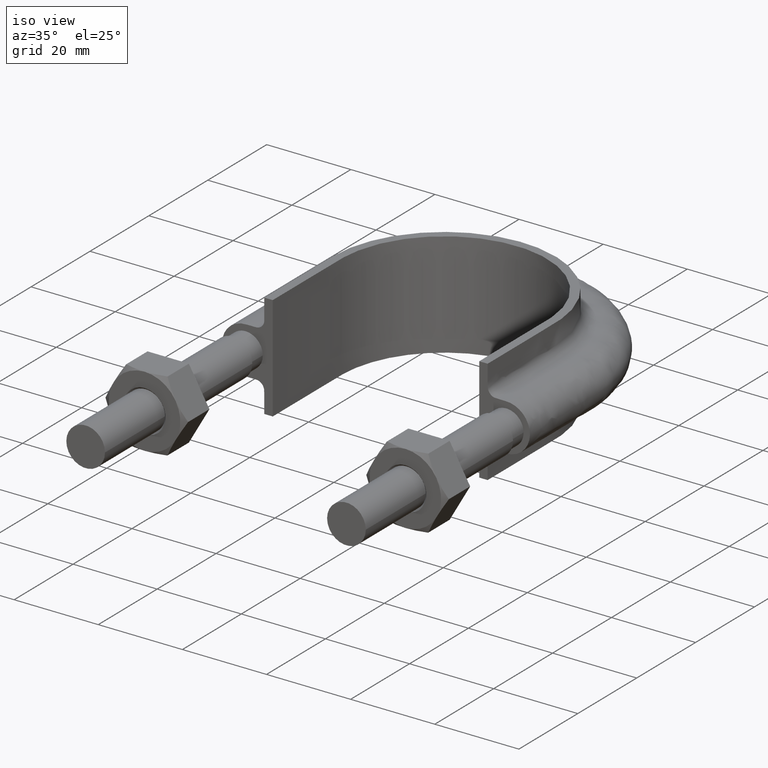
[diagram: clean part render]
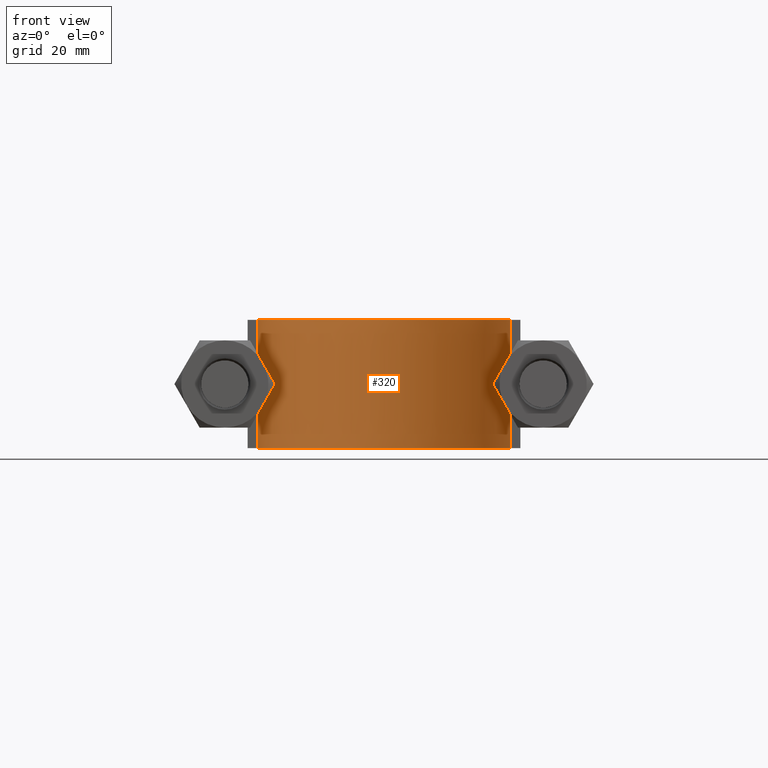
[diagram: tour spotlight — one face highlighted and labeled with its STEP entity id]
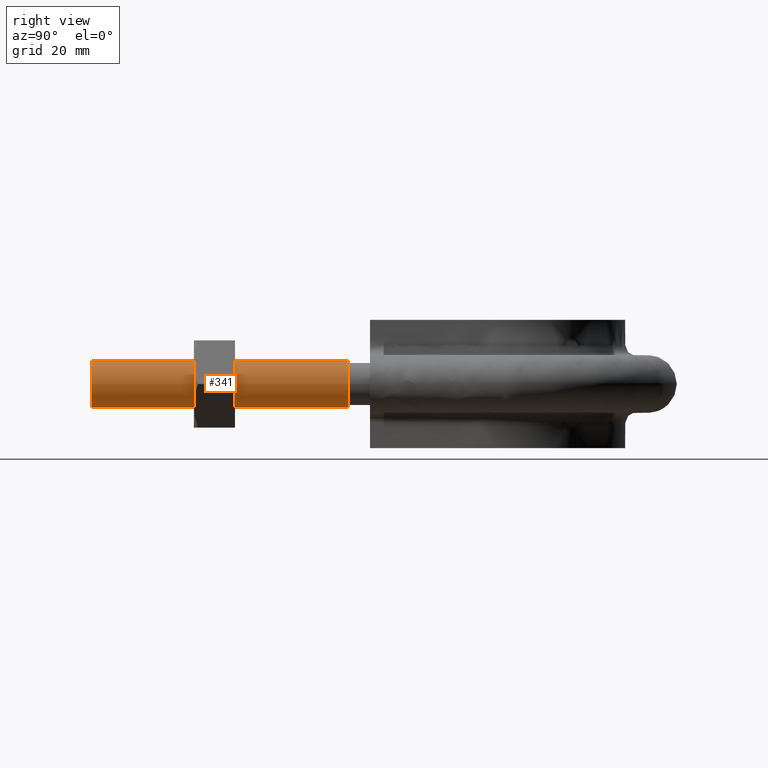
[diagram: tour spotlight — one face highlighted and labeled with its STEP entity id]
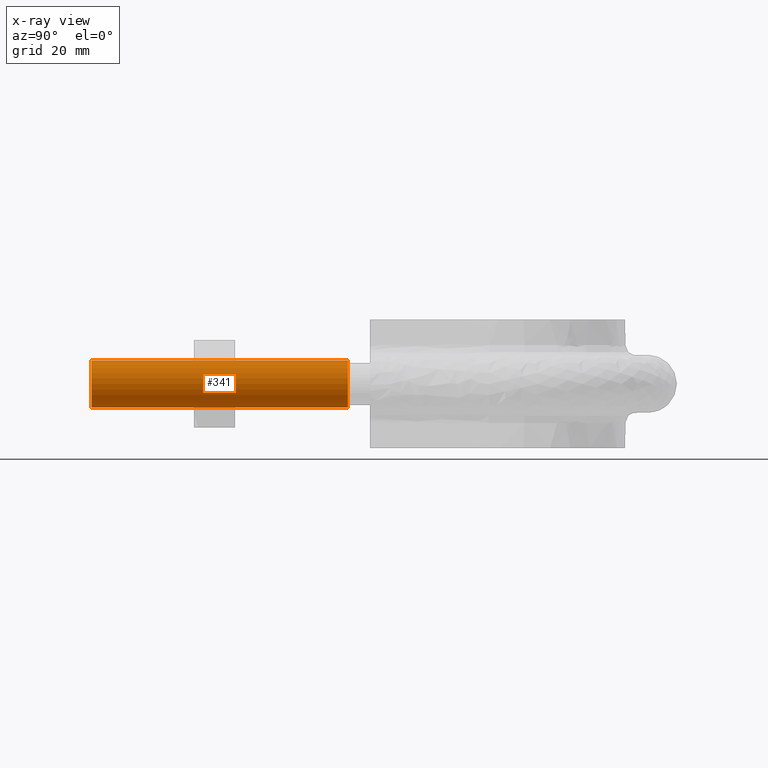
[diagram: x-ray of the same camera — body ghosted, this tour face saturated]
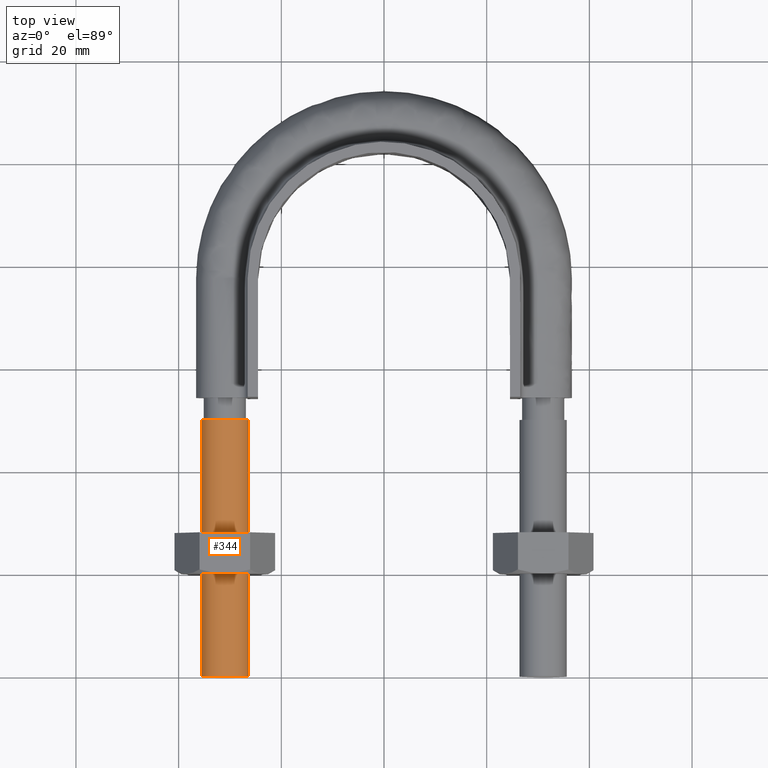
[diagram: tour spotlight — one face highlighted and labeled with its STEP entity id]
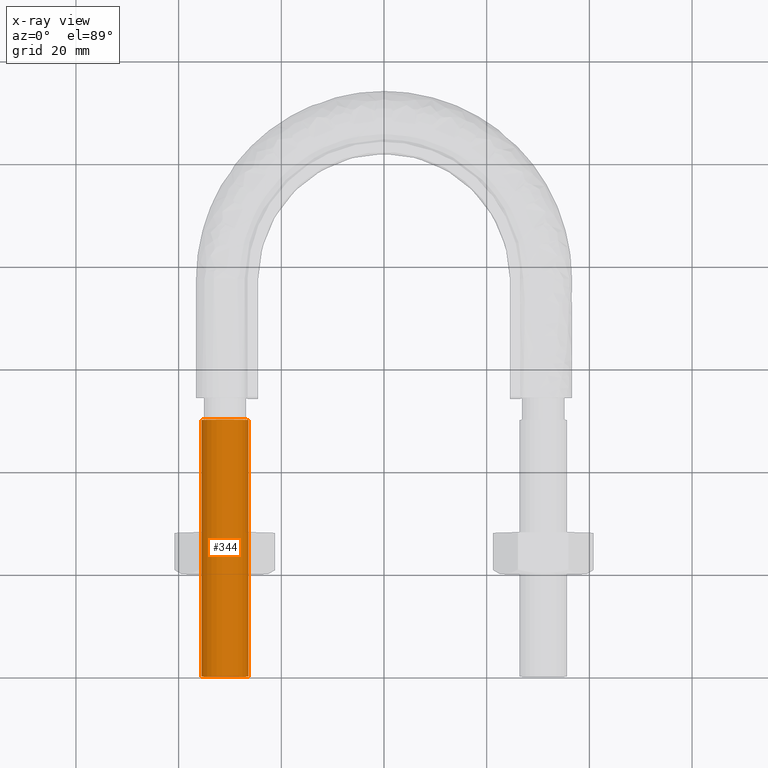
[diagram: x-ray of the same camera — body ghosted, this tour face saturated]
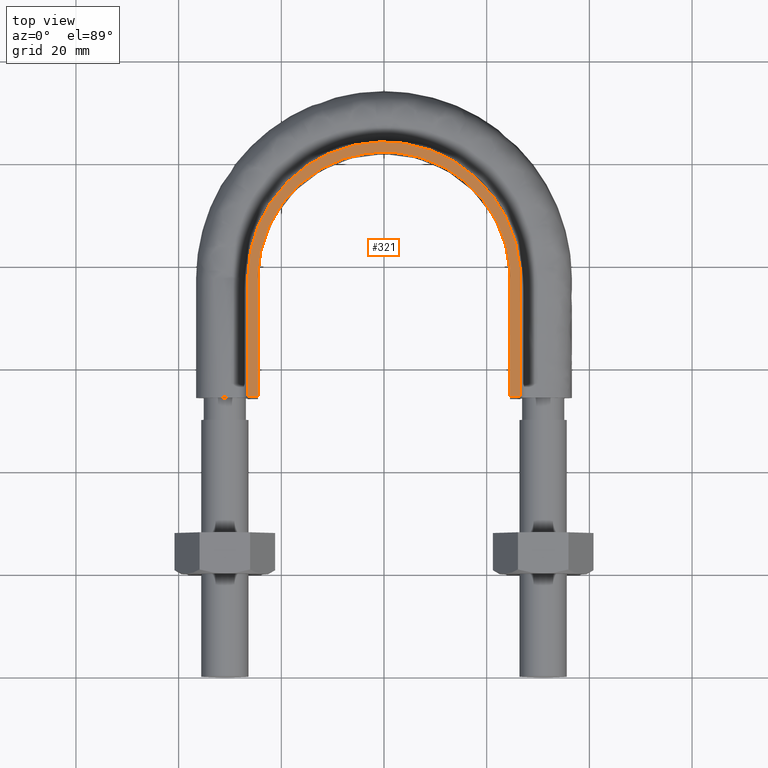
[diagram: tour spotlight — one face highlighted and labeled with its STEP entity id]
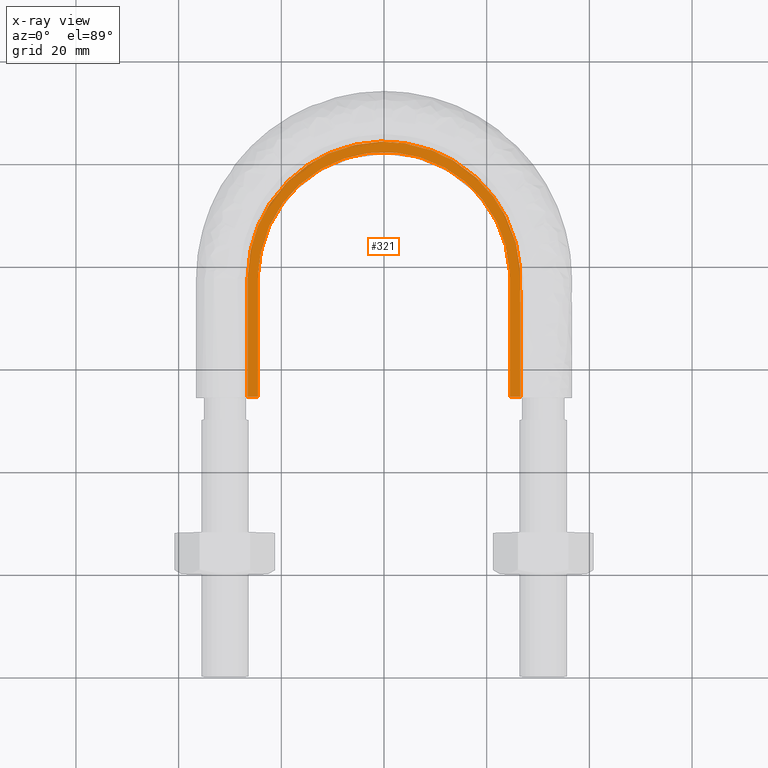
[diagram: x-ray of the same camera — body ghosted, this tour face saturated]
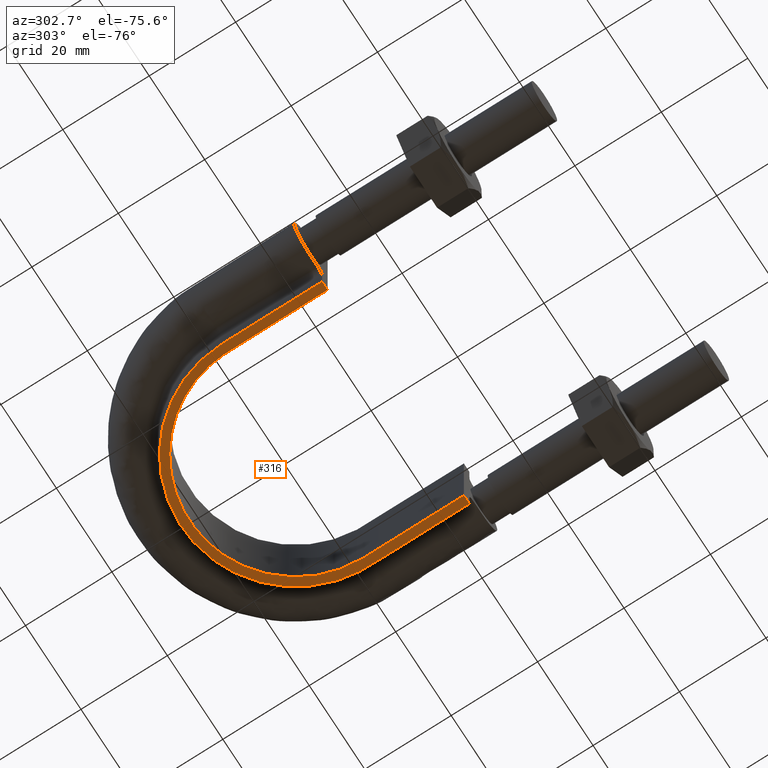
[diagram: tour spotlight — one face highlighted and labeled with its STEP entity id]
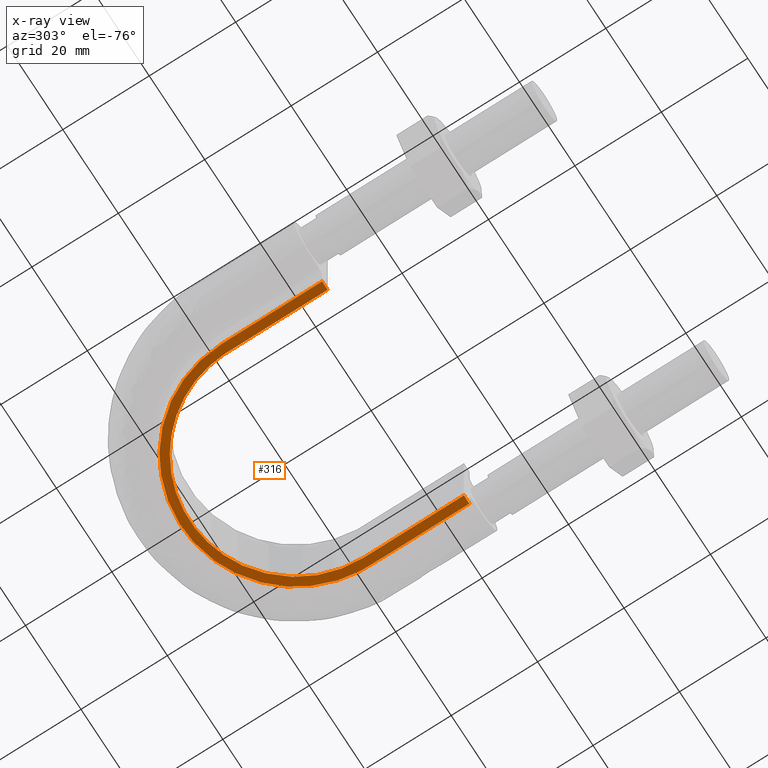
[diagram: x-ray of the same camera — body ghosted, this tour face saturated]
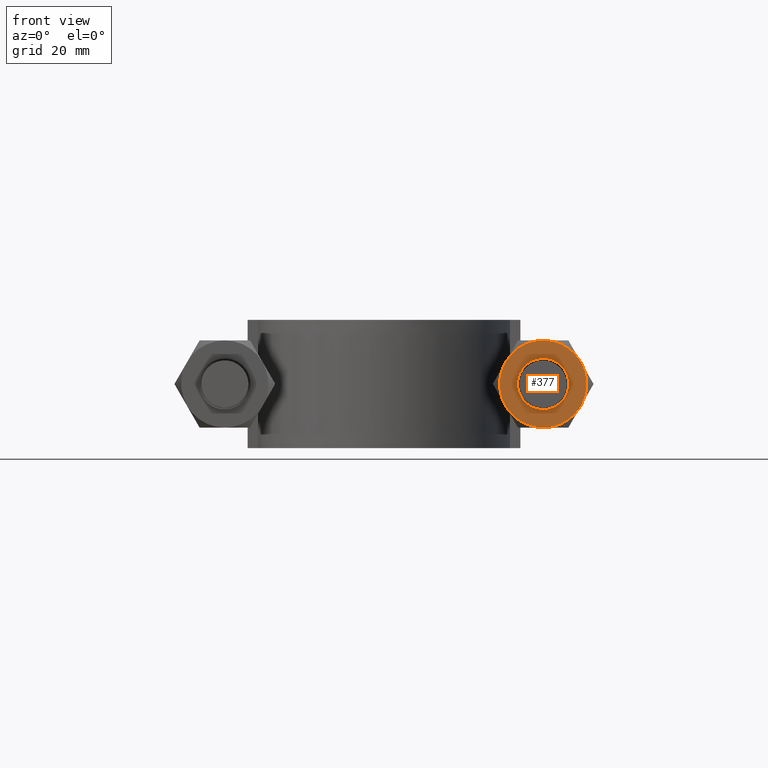
[diagram: tour spotlight — one face highlighted and labeled with its STEP entity id]
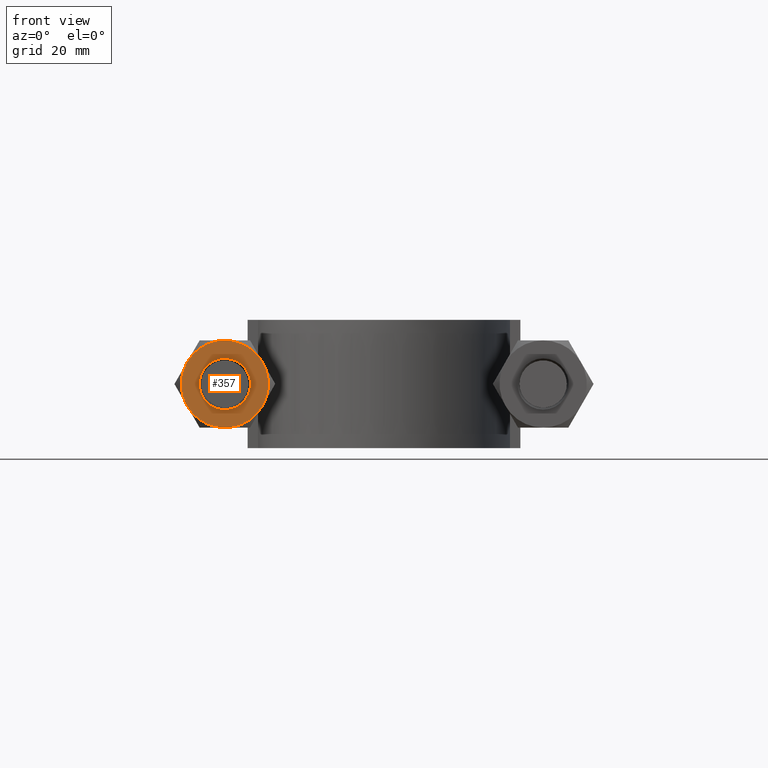
[diagram: tour spotlight — one face highlighted and labeled with its STEP entity id]
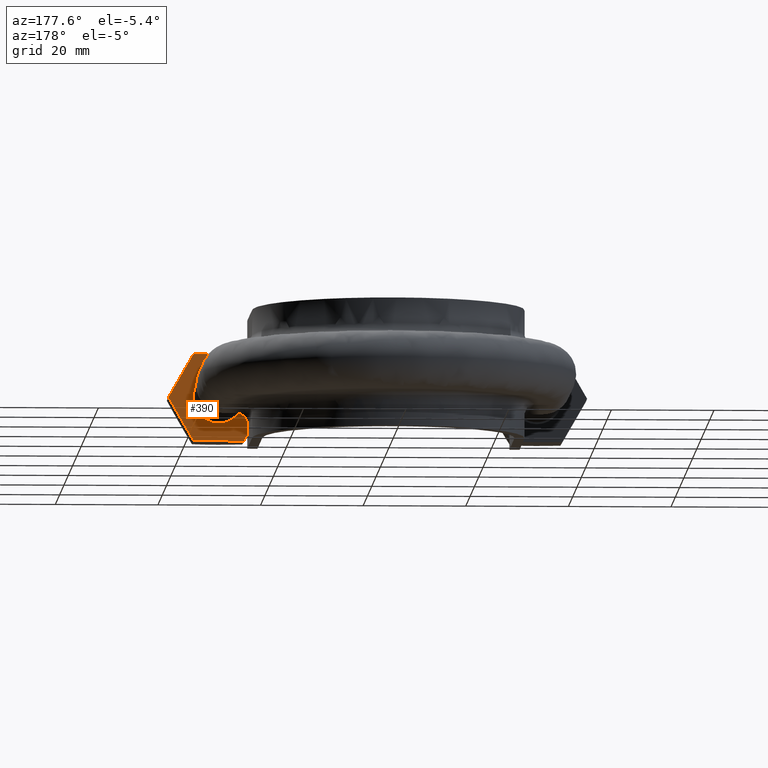
[diagram: tour spotlight — one face highlighted and labeled with its STEP entity id]
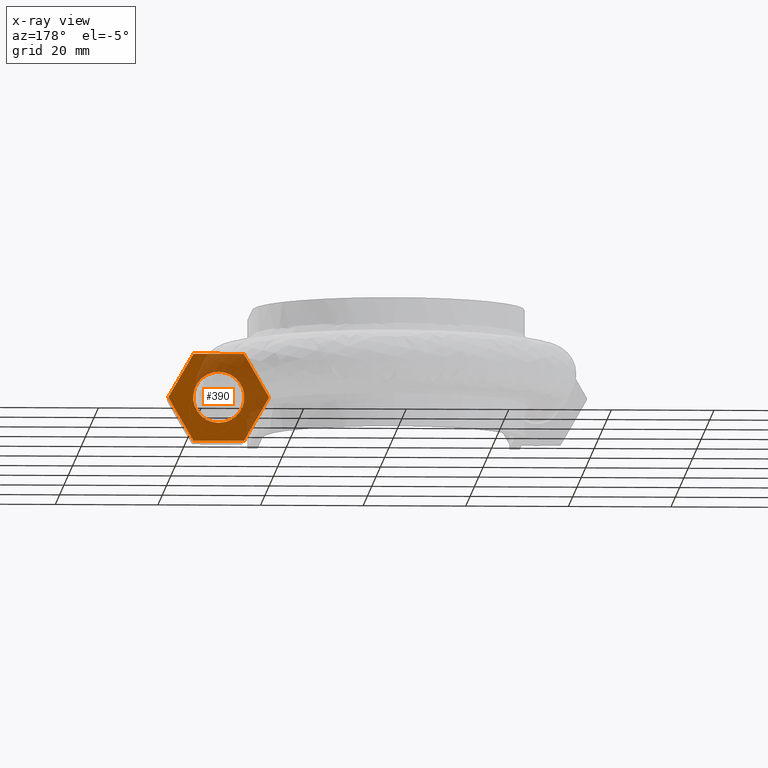
[diagram: x-ray of the same camera — body ghosted, this tour face saturated]
A machine part: a face-by-face anatomy tour. The part has 78 B-rep faces; the first image is the clean iso view, then the 8 largest visible faces are spotlighted one at a time (largest first), each with its STEP entity span.

Face 1 — front view, entity #320. In plain terms, the highlighted face is a SurfaceOfExtrusion surface.
Definition (entity closure, byte-faithful):
#320 = ADVANCED_FACE( '', ( #407 ), #408, .T. );
#407 = FACE_OUTER_BOUND( '', #1256, .T. );
#408 = SURFACE_OF_LINEAR_EXTRUSION( '', #1257, #1258 );
#1256 = EDGE_LOOP( '', ( #1596, #1597, #1598, #1599 ) );
#1257 = B_SPLINE_CURVE_WITH_KNOTS( '', 3, ( #1600, #1601, #1602, #1603, #1604, #1605, #1606, #1607, #1608, #1609, #1610, #1611, #1612, #1613, #1614, #1615, #1616 ), .UNSPECIFIED., .F., .F., ( 4, 3, 1, 1, 1, 1, 1, 1, 1, 3, 4 ), ( -7.85424354243542, -7.00000000000000, -6.50000000000000, -6.00000000000000, -5.00000000000000, -4.00000000000000, -3.00000000000000, -2.00000000000000, -1.50000000000000, -1.00000000000000, -0.145756457564576 ), .UNSPECIFIED. );
#1258 = VECTOR( '', #1617, 1000.00000000000 );
#1596 = ORIENTED_EDGE( '', *, *, #2111, .T. );
#1597 = ORIENTED_EDGE( '', *, *, #2116, .T. );
#1598 = ORIENTED_EDGE( '', *, *, #2122, .F. );
#1599 = ORIENTED_EDGE( '', *, *, #2124, .T. );
#1600 = CARTESIAN_POINT( '', ( 24.5500000000000, 54.3000000000000, 12.5000100000910 ) );
#1601 = CARTESIAN_POINT( '', ( 24.5500000000000, 62.0166666666667, 12.5000100000910 ) );
#1602 = CARTESIAN_POINT( '', ( 24.5500000000000, 69.7333333333333, 12.5000100000910 ) );
#1603 = CARTESIAN_POINT( '', ( 24.5500000000000, 77.4500000000000, 12.5000100000910 ) );
#1604 = CARTESIAN_POINT( '', ( 24.5500000000000, 79.5780025041717, 12.5000100000910 ) );
#1605 = CARTESIAN_POINT( '', ( 23.9738358905282, 83.8798607773325, 12.5000100000910 ) );
#1606 = CARTESIAN_POINT( '', ( 20.6884777838097, 91.8633071998795, 12.5000100000910 ) );
#1607 = CARTESIAN_POINT( '', ( 12.8483754366917, 99.7059313144219, 12.5000100000910 ) );
#1608 = CARTESIAN_POINT( '', ( 1.95703452673187E-014, 103.147034342789, 12.5000100000910 ) );
#1609 = CARTESIAN_POINT( '', ( -12.8483754366917, 99.7059313144219, 12.5000100000910 ) );
#1610 = CARTESIAN_POINT( '', ( -20.6884777838097, 91.8633071998795, 12.5000100000910 ) );
#1611 = CARTESIAN_POINT( '', ( -23.9738358905281, 83.8798607773325, 12.5000100000910 ) );
#1612 = CARTESIAN_POINT( '', ( -24.5500000000000, 79.5780025041717, 12.5000100000910 ) );
#1613 = CARTESIAN_POINT( '', ( -24.5500000000000, 77.4500000000000, 12.5000100000910 ) );
#1614 = CARTESIAN_POINT( '', ( -24.5500000000000, 69.7333333333333, 12.5000100000910 ) );
#1615 = CARTESIAN_POINT( '', ( -24.5500000000000, 62.0166666666667, 12.5000100000910 ) );
#1616 = CARTESIAN_POINT( '', ( -24.5500000000000, 54.3000000000000, 12.5000100000910 ) );
#1617 = DIRECTION( '', ( 0.000000000000000, 0.000000000000000, -1.00000000000000 ) );
#2111 = EDGE_CURVE( '', #2263, #2264, #2265, .T. );
#2116 = EDGE_CURVE( '', #2264, #2273, #2274, .F. );
#2122 = EDGE_CURVE( '', #2281, #2273, #2283, .T. );
#2124 = EDGE_CURVE( '', #2281, #2263, #2286, .T. );
#2263 = VERTEX_POINT( '', #2513 );
#2264 = VERTEX_POINT( '', #2514 );
#2265 = LINE( '', #2515, #2516 );
#2273 = VERTEX_POINT( '', #2565 );
#2274 = B_SPLINE_CURVE_WITH_KNOTS( '', 3, ( #2566, #2567, #2568, #2569, #2570, #2571, #2572, #2573, #2574, #2575, #2576, #2577, #2578, #2579, #2580, #2581, #2582 ), .UNSPECIFIED., .F., .F., ( 4, 3, 1, 1, 1, 1, 1, 1, 1, 3, 4 ), ( -7.85424354243542, -7.00000000000000, -6.50000000000000, -6.00000000000000, -5.00000000000000, -4.00000000000000, -3.00000000000000, -2.00000000000000, -1.50000000000000, -1.00000000000000, -0.145756457564576 ), .UNSPECIFIED. );
#2281 = VERTEX_POINT( '', #2652 );
#2283 = LINE( '', #2655, #2656 );
#2286 = B_SPLINE_CURVE_WITH_KNOTS( '', 3, ( #2668, #2669, #2670, #2671, #2672, #2673, #2674, #2675, #2676, #2677, #2678, #2679, #2680, #2681, #2682, #2683, #2684, #2685, #2686, #2687, #2688, #2689, #2690, #2691, #2692, #2693, #2694, #2695, #2696, #2697, #2698, #2699, #2700, #2701, #2702, #2703, #2704, #2705, #2706, #2707, #2708, #2709, #2710, #2711, #2712, #2713, #2714, #2715, #2716, #2717, #2718, #2719, #2720, #2721, #2722, #2723, #2724, #2725, #2726, #2727, #2728, #2729, #2730, #2731, #2732, #2733, #2734 ), .UNSPECIFIED., .F., .F., ( 4, 1, 2, 2, 2, 2, 2, 2, 2, 2, 2, 2, 2, 2, 2, 2, 2, 2, 2, 2, 2, 2, 2, 2, 2, 2, 2, 2, 2, 2, 2, 2, 1, 1, 4 ), ( 0.000000000000000, 0.0154145326467006, 0.0231217989700509, 0.0250486155508884, 0.0269754321317260, 0.0308290652934012, 0.0346826984550764, 0.0366095150359140, 0.0385363316167516, 0.0423899647784267, 0.0443167813592643, 0.0462435979401019, 0.0500972311017770, 0.0520240476826146, 0.0539508642634522, 0.0578044974251273, 0.0597313140059648, 0.0616581305868024, 0.0655117637484775, 0.0674385803293151, 0.0693653969101526, 0.0732190300718278, 0.0751458466526653, 0.0770726632335028, 0.0809262963951779, 0.0828531129760155, 0.0847799295568531, 0.0924871958802032, 0.0944140124610407, 0.0963408290418783, 0.100194462203553, 0.102121278784391, 0.104048095365228, 0.107901728526904, 0.123316261173604 ), .UNSPECIFIED. );
#2513 = CARTESIAN_POINT( '', ( -24.5500000000000, 54.3000000000000, 12.5000000000000 ) );
#2514 = CARTESIAN_POINT( '', ( -24.5500000000000, 54.3000000000000, -12.5000000000000 ) );
#2515 = CARTESIAN_POINT( '', ( -24.5500000000000, 54.3000000000000, 12.5000100000910 ) );
#2516 = VECTOR( '', #3159, 1000.00000000000 );
#2565 = CARTESIAN_POINT( '', ( 24.5500000000000, 54.3000000000000, -12.5000000000000 ) );
#2566 = CARTESIAN_POINT( '', ( 24.5500000000000, 54.3000000000000, -12.5000000000000 ) );
#2567 = CARTESIAN_POINT( '', ( 24.5500000000000, 62.0166666666667, -12.5000000000000 ) );
#2568 = CARTESIAN_POINT( '', ( 24.5500000000000, 69.7333333333333, -12.5000000000000 ) );
#2569 = CARTESIAN_POINT( '', ( 24.5500000000000, 77.4500000000000, -12.5000000000000 ) );
#2570 = CARTESIAN_POINT( '', ( 24.5500000000000, 79.5780025041717, -12.5000000000000 ) );
#2571 = CARTESIAN_POINT( '', ( 23.9738358905282, 83.8798607773325, -12.5000000000000 ) );
#2572 = CARTESIAN_POINT( '', ( 20.6884777838097, 91.8633071998795, -12.5000000000000 ) );
#2573 = CARTESIAN_POINT( '', ( 12.8483754366917, 99.7059313144219, -12.5000000000000 ) );
#2574 = CARTESIAN_POINT( '', ( 1.95703452673187E-014, 103.147034342789, -12.5000000000000 ) );
#2575 = CARTESIAN_POINT( '', ( -12.8483754366917, 99.7059313144219, -12.5000000000000 ) );
#2576 = CARTESIAN_POINT( '', ( -20.6884777838097, 91.8633071998795, -12.5000000000000 ) );
#2577 = CARTESIAN_POINT( '', ( -23.9738358905281, 83.8798607773325, -12.5000000000000 ) );
#2578 = CARTESIAN_POINT( '', ( -24.5500000000000, 79.5780025041717, -12.5000000000000 ) );
#2579 = CARTESIAN_POINT( '', ( -24.5500000000000, 77.4500000000000, -12.5000000000000 ) );
#2580 = CARTESIAN_POINT( '', ( -24.5500000000000, 69.7333333333333, -12.5000000000000 ) );
#2581 = CARTESIAN_POINT( '', ( -24.5500000000000, 62.0166666666667, -12.5000000000000 ) );
#2582 = CARTESIAN_POINT( '', ( -24.5500000000000, 54.3000000000000, -12.5000000000000 ) );
#2652 = CARTESIAN_POINT( '', ( 24.5500000000000, 54.3000000000000, 12.5000000000000 ) );
#2655 = CARTESIAN_POINT( '', ( 24.5500000000000, 54.3000000000000, 12.5000100000910 ) );
#2656 = VECTOR( '', #3164, 1000.00000000000 );
#2668 = CARTESIAN_POINT( '', ( 24.5500000000000, 54.3000000000000, 12.5000000000000 ) );
#2669 = CARTESIAN_POINT( '', ( 24.5500000000000, 59.4384221999800, 12.5000000000000 ) );
#2670 = CARTESIAN_POINT( '', ( 24.5500000000000, 67.1460554999500, 12.5000000000000 ) );
#2671 = CARTESIAN_POINT( '', ( 24.5500000000000, 74.8536887999200, 12.5000000000000 ) );
#2672 = CARTESIAN_POINT( '', ( 24.5500000000000, 78.0652026749075, 12.5000000000000 ) );
#2673 = CARTESIAN_POINT( '', ( 24.5252751330927, 78.7072641688935, 12.5000000000000 ) );
#2674 = CARTESIAN_POINT( '', ( 24.4234462537603, 79.9908760077759, 12.5000000000000 ) );
#2675 = CARTESIAN_POINT( '', ( 24.3467657946690, 80.6342202589337, 12.5000000000000 ) );
#2676 = CARTESIAN_POINT( '', ( 24.0418819320212, 82.5512040485106, 12.5000000000000 ) );
#2677 = CARTESIAN_POINT( '', ( 23.7423938741594, 83.7980756143652, 12.5000000000000 ) );
#2678 = CARTESIAN_POINT( '', ( 22.9567434107525, 86.2314557302550, 12.5000000000000 ) );
#2679 = CARTESIAN_POINT( '', ( 22.4705596365818, 87.4179573705317, 12.5000000000000 ) );
#2680 = CARTESIAN_POINT( '', ( 21.5925627875953, 89.1496193486760, 12.5000000000000 ) );
#2681 = CARTESIAN_POINT( '', ( 21.2766071075014, 89.7149736051726, 12.5000000000000 ) );
#2682 = CARTESIAN_POINT( '', ( 20.6053719022684, 90.8105348664258, 12.5000000000000 ) );
#2683 = CARTESIAN_POINT( '', ( 20.2492833691970, 91.3426982596921, 12.5000000000000 ) );
#2684 = CARTESIAN_POINT( '', ( 19.1215068537777, 92.8937876646727, 12.5000000000000 ) );
#2685 = CARTESIAN_POINT( '', ( 18.2907926568853, 93.8676826796255, 12.5000000000000 ) );
#2686 = CARTESIAN_POINT( '', ( 16.9250762587395, 95.2372481605127, 12.5000000000000 ) );
#2687 = CARTESIAN_POINT( '', ( 16.4483141734126, 95.6794580763296, 12.5000000000000 ) );
#2688 = CARTESIAN_POINT( '', ( 15.4703087185620, 96.5179842065183, 12.5000000000000 ) );
#2689 = CARTESIAN_POINT( '', ( 14.9674075928234, 96.9161548866917, 12.5000000000000 ) );
#2690 = CARTESIAN_POINT( '', ( 13.4174319314452, 98.0480315871902, 12.5000000000000 ) );
#2691 = CARTESIAN_POINT( '', ( 12.3291014903936, 98.7191271240917, 12.5000000000000 ) );
#2692 = CARTESIAN_POINT( '', ( 10.6113550739498, 99.5963928065052, 12.5000000000000 ) );
#2693 = CARTESIAN_POINT( '', ( 10.0221200459752, 99.8683847934330, 12.5000000000000 ) );
#2694 = CARTESIAN_POINT( '', ( 8.82789979738709, 100.363314078471, 12.5000000000000 ) );
#2695 = CARTESIAN_POINT( '', ( 8.22453257139356, 100.585861709962, 12.5000000000000 ) );
#2696 = CARTESIAN_POINT( '', ( 6.39627757875420, 101.181214530966, 12.5000000000000 ) );
#2697 = CARTESIAN_POINT( '', ( 5.15338195845829, 101.482308901390, 12.5000000000000 ) );
#2698 = CARTESIAN_POINT( '', ( 3.25266287101839, 101.789095428283, 12.5000000000000 ) );
#2699 = CARTESIAN_POINT( '', ( 2.61299113566843, 101.867071354940, 12.5000000000000 ) );
#2700 = CARTESIAN_POINT( '', ( 1.32093241036630, 101.972388560719, 12.5000000000000 ) );
#2701 = CARTESIAN_POINT( '', ( 0.676406080425034, 101.999046675169, 12.5000000000000 ) );
#2702 = CARTESIAN_POINT( '', ( -1.24870371014289, 102.001831348721, 12.5000000000000 ) );
#2703 = CARTESIAN_POINT( '', ( -2.52265182528387, 101.901467818298, 12.5000000000000 ) );
#2704 = CARTESIAN_POINT( '', ( -4.41989760294861, 101.603117496314, 12.5000000000000 ) );
#2705 = CARTESIAN_POINT( '', ( -5.05001948103531, 101.478882110562, 12.5000000000000 ) );
#2706 = CARTESIAN_POINT( '', ( -6.30559148152663, 101.179922232146, 12.5000000000000 ) );
#2707 = CARTESIAN_POINT( '', ( -6.93138081059488, 101.004801946248, 12.5000000000000 ) );
#2708 = CARTESIAN_POINT( '', ( -8.76889753233642, 100.412561446254, 12.5000000000000 ) );
#2709 = CARTESIAN_POINT( '', ( -9.95225725658831, 99.9267801345634, 12.5000000000000 ) );
#2710 = CARTESIAN_POINT( '', ( -11.6646188489648, 99.0612380840055, 12.5000000000000 ) );
#2711 = CARTESIAN_POINT( '', ( -12.2248697137769, 98.7497158527538, 12.5000000000000 ) );
#2712 = CARTESIAN_POINT( '', ( -13.3236776153922, 98.0792985269674, 12.5000000000000 ) );
#2713 = CARTESIAN_POINT( '', ( -13.8646027205756, 97.7187643121761, 12.5000000000000 ) );
#2714 = CARTESIAN_POINT( '', ( -15.4323331862349, 96.5816103428784, 12.5000000000000 ) );
#2715 = CARTESIAN_POINT( '', ( -16.4066904175185, 95.7499313198934, 12.5000000000000 ) );
#2716 = CARTESIAN_POINT( '', ( -17.7664797273136, 94.3966709647585, 12.5000000000000 ) );
#2717 = CARTESIAN_POINT( '', ( -18.2026751411942, 93.9278462929921, 12.5000000000000 ) );
#2718 = CARTESIAN_POINT( '', ( -19.0403725195660, 92.9541411916242, 12.5000000000000 ) );
#2719 = CARTESIAN_POINT( '', ( -19.4425779981799, 92.4483024401625, 12.5000000000000 ) );
#2720 = CARTESIAN_POINT( '', ( -21.3557319354796, 89.8353834350350, 12.5000000000000 ) );
#2721 = CARTESIAN_POINT( '', ( -22.5176023500941, 87.5595033352519, 12.5000000000000 ) );
#2722 = CARTESIAN_POINT( '', ( -23.5216696114527, 84.4890361381941, 12.5000000000000 ) );
#2723 = CARTESIAN_POINT( '', ( -23.6990122608683, 83.8647462965356, 12.5000000000000 ) );
#2724 = CARTESIAN_POINT( '', ( -24.0024245935730, 82.6147239867793, 12.5000000000000 ) );
#2725 = CARTESIAN_POINT( '', ( -24.1294131227665, 81.9864283058244, 12.5000000000000 ) );
#2726 = CARTESIAN_POINT( '', ( -24.4371992964721, 80.0918170449202, 12.5000000000000 ) );
#2727 = CARTESIAN_POINT( '', ( -24.5457173567177, 78.8158968179808, 12.5000000000000 ) );
#2728 = CARTESIAN_POINT( '', ( -24.5519571685428, 76.8812155098234, 12.5000000000000 ) );
#2729 = CARTESIAN_POINT( '', ( -24.5500000000000, 76.2357852822297, 12.5000000000000 ) );
#2730 = CARTESIAN_POINT( '', ( -24.5500000000000, 74.9454449715102, 12.5000000000000 ) );
#2731 = CARTESIAN_POINT( '', ( -24.5500000000000, 73.0099345054311, 12.5000000000000 ) );
#2732 = CARTESIAN_POINT( '', ( -24.5500000000000, 65.9130627964745, 12.5000000000000 ) );
#2733 = CARTESIAN_POINT( '', ( -24.5500000000000, 59.4613612428776, 12.5000000000000 ) );
#2734 = CARTESIAN_POINT( '', ( -24.5500000000000, 54.3000000000000, 12.5000000000000 ) );
#3159 = DIRECTION( '', ( 0.000000000000000, 0.000000000000000, -1.00000000000000 ) );
#3164 = DIRECTION( '', ( 0.000000000000000, 0.000000000000000, -1.00000000000000 ) );

Face 2 — right view, entity #341. An x-ray twin of the same camera follows (body ghosted, this face saturated) — the face is partly hidden behind the body. In plain terms, the highlighted cylindrical surface (bore or boss wall) has radius 4.6 mm, axis along (0, 1, 0).
Definition (entity closure, byte-faithful):
#341 = ADVANCED_FACE( '', ( #452, #453 ), #454, .T. );
#452 = FACE_OUTER_BOUND( '', #1451, .T. );
#453 = FACE_OUTER_BOUND( '', #1452, .T. );
#454 = CYLINDRICAL_SURFACE( '', #1453, 4.60000000000000 );
#1451 = EDGE_LOOP( '', ( #1739 ) );
#1452 = EDGE_LOOP( '', ( #1740 ) );
#1453 = AXIS2_PLACEMENT_3D( '', #1741, #1742, #1743 );
#1739 = ORIENTED_EDGE( '', *, *, #2155, .T. );
#1740 = ORIENTED_EDGE( '', *, *, #2156, .F. );
#1741 = CARTESIAN_POINT( '', ( 31.0000000000000, 50.0000000000000, 1.55065779552758E-014 ) );
#1742 = DIRECTION( '', ( 2.44921270764475E-016, 1.00000000000000, 3.06151588455594E-016 ) );
#1743 = DIRECTION( '', ( 1.00000000000000, -2.44921270764475E-016, -3.74915180455534E-032 ) );
#2155 = EDGE_CURVE( '', #2333, #2333, #2334, .T. );
#2156 = EDGE_CURVE( '', #2335, #2335, #2336, .T. );
#2333 = VERTEX_POINT( '', #2823 );
#2334 = CIRCLE( '', #2824, 4.60000000000000 );
#2335 = VERTEX_POINT( '', #2825 );
#2336 = CIRCLE( '', #2826, 4.60000000000000 );
#2823 = CARTESIAN_POINT( '', ( 35.6000000000000, 50.0000000000000, 1.55065779552758E-014 ) );
#2824 = AXIS2_PLACEMENT_3D( '', #3213, #3214, #3215 );
#2825 = CARTESIAN_POINT( '', ( 35.6000000000000, -8.71919723921533E-015, 1.98998532496135E-016 ) );
#2826 = AXIS2_PLACEMENT_3D( '', #3216, #3217, #3218 );
#3213 = CARTESIAN_POINT( '', ( 31.0000000000000, 50.0000000000000, 1.55065779552758E-014 ) );
#3214 = DIRECTION( '', ( -2.44921270764475E-016, -1.00000000000000, -3.06151588455594E-016 ) );
#3215 = DIRECTION( '', ( 1.00000000000000, -2.44921270764475E-016, -3.74915180455534E-032 ) );
#3216 = CARTESIAN_POINT( '', ( 31.0000000000000, -7.59255939369874E-015, 1.98998532496135E-016 ) );
#3217 = DIRECTION( '', ( -2.44921270764475E-016, -1.00000000000000, -3.06151588455594E-016 ) );
#3218 = DIRECTION( '', ( 1.00000000000000, -2.44921270764475E-016, -3.74915180455534E-032 ) );

Face 3 — top view, entity #344. An x-ray twin of the same camera follows (body ghosted, this face saturated) — the face is partly hidden behind the body. In plain terms, the highlighted cylindrical surface (bore or boss wall) has radius 4.6 mm, axis along (0, 1, 0).
Definition (entity closure, byte-faithful):
#344 = ADVANCED_FACE( '', ( #459, #460 ), #461, .T. );
#459 = FACE_OUTER_BOUND( '', #1458, .T. );
#460 = FACE_OUTER_BOUND( '', #1459, .T. );
#461 = CYLINDRICAL_SURFACE( '', #1460, 4.60000000000000 );
#1458 = EDGE_LOOP( '', ( #1752 ) );
#1459 = EDGE_LOOP( '', ( #1753 ) );
#1460 = AXIS2_PLACEMENT_3D( '', #1754, #1755, #1756 );
#1752 = ORIENTED_EDGE( '', *, *, #2157, .T. );
#1753 = ORIENTED_EDGE( '', *, *, #2158, .F. );
#1754 = CARTESIAN_POINT( '', ( -31.0000000000000, 50.0000000000000, 1.55065779552759E-014 ) );
#1755 = DIRECTION( '', ( 2.44921270764475E-016, 1.00000000000000, 3.06151588455594E-016 ) );
#1756 = DIRECTION( '', ( 1.00000000000000, -2.44921270764475E-016, -3.74915180455534E-032 ) );
#2157 = EDGE_CURVE( '', #2337, #2337, #2338, .T. );
#2158 = EDGE_CURVE( '', #2339, #2339, #2340, .T. );
#2337 = VERTEX_POINT( '', #2827 );
#2338 = CIRCLE( '', #2828, 4.60000000000000 );
#2339 = VERTEX_POINT( '', #2829 );
#2340 = CIRCLE( '', #2830, 4.60000000000000 );
#2827 = CARTESIAN_POINT( '', ( -26.4000000000000, 50.0000000000000, 1.55065779552759E-014 ) );
#2828 = AXIS2_PLACEMENT_3D( '', #3219, #3220, #3221 );
#2829 = CARTESIAN_POINT( '', ( -26.4000000000000, 6.46592154818215E-015, 1.98998532496137E-016 ) );
#2830 = AXIS2_PLACEMENT_3D( '', #3222, #3223, #3224 );
#3219 = CARTESIAN_POINT( '', ( -31.0000000000000, 50.0000000000000, 1.55065779552759E-014 ) );
#3220 = DIRECTION( '', ( -2.44921270764475E-016, -1.00000000000000, -3.06151588455594E-016 ) );
#3221 = DIRECTION( '', ( 1.00000000000000, -2.44921270764475E-016, -3.74915180455534E-032 ) );
#3222 = CARTESIAN_POINT( '', ( -31.0000000000000, 7.59255939369874E-015, 1.98998532496137E-016 ) );
#3223 = DIRECTION( '', ( -2.44921270764475E-016, -1.00000000000000, -3.06151588455594E-016 ) );
#3224 = DIRECTION( '', ( 1.00000000000000, -2.44921270764475E-016, -3.74915180455534E-032 ) );

Face 4 — top view, entity #321. An x-ray twin of the same camera follows (body ghosted, this face saturated) — the face is partly hidden behind the body. In plain terms, the highlighted planar face has unit normal (0, 0, 1).
Definition (entity closure, byte-faithful):
#321 = ADVANCED_FACE( '', ( #409 ), #410, .T. );
#409 = FACE_OUTER_BOUND( '', #1259, .T. );
#410 = PLANE( '', #1260 );
#1259 = EDGE_LOOP( '', ( #1618, #1619, #1620, #1621 ) );
#1260 = AXIS2_PLACEMENT_3D( '', #1622, #1623, #1624 );
#1618 = ORIENTED_EDGE( '', *, *, #2112, .T. );
#1619 = ORIENTED_EDGE( '', *, *, #2124, .F. );
#1620 = ORIENTED_EDGE( '', *, *, #2121, .T. );
#1621 = ORIENTED_EDGE( '', *, *, #2119, .T. );
#1622 = CARTESIAN_POINT( '', ( 40.0000000000000, 124.300000000000, 12.5000000000000 ) );
#1623 = DIRECTION( '', ( 0.000000000000000, 0.000000000000000, 1.00000000000000 ) );
#1624 = DIRECTION( '', ( 1.00000000000000, 0.000000000000000, 0.000000000000000 ) );
#2112 = EDGE_CURVE( '', #2266, #2263, #2267, .F. );
#2119 = EDGE_CURVE( '', #2278, #2266, #2279, .F. );
#2121 = EDGE_CURVE( '', #2281, #2278, #2282, .F. );
#2124 = EDGE_CURVE( '', #2281, #2263, #2286, .T. );
#2263 = VERTEX_POINT( '', #2513 );
#2266 = VERTEX_POINT( '', #2517 );
#2267 = LINE( '', #2518, #2519 );
#2278 = VERTEX_POINT( '', #2603 );
#2279 = B_SPLINE_CURVE_WITH_KNOTS( '', 3, ( #2604, #2605, #2606, #2607, #2608, #2609, #2610, #2611, #2612, #2613, #2614, #2615, #2616, #2617, #2618, #2619, #2620 ), .UNSPECIFIED., .F., .F., ( 4, 3, 1, 1, 1, 1, 1, 1, 1, 3, 4 ), ( 0.145756457564577, 1.00000000000000, 1.50000000000000, 2.00000000000000, 3.00000000000000, 4.00000000000000, 5.00000000000000, 6.00000000000000, 6.50000000000000, 7.00000000000000, 7.85424354243542 ), .UNSPECIFIED. );
#2281 = VERTEX_POINT( '', #2652 );
#2282 = LINE( '', #2653, #2654 );
#2286 = B_SPLINE_CURVE_WITH_KNOTS( '', 3, ( #2668, #2669, #2670, #2671, #2672, #2673, #2674, #2675, #2676, #2677, #2678, #2679, #2680, #2681, #2682, #2683, #2684, #2685, #2686, #2687, #2688, #2689, #2690, #2691, #2692, #2693, #2694, #2695, #2696, #2697, #2698, #2699, #2700, #2701, #2702, #2703, #2704, #2705, #2706, #2707, #2708, #2709, #2710, #2711, #2712, #2713, #2714, #2715, #2716, #2717, #2718, #2719, #2720, #2721, #2722, #2723, #2724, #2725, #2726, #2727, #2728, #2729, #2730, #2731, #2732, #2733, #2734 ), .UNSPECIFIED., .F., .F., ( 4, 1, 2, 2, 2, 2, 2, 2, 2, 2, 2, 2, 2, 2, 2, 2, 2, 2, 2, 2, 2, 2, 2, 2, 2, 2, 2, 2, 2, 2, 2, 2, 1, 1, 4 ), ( 0.000000000000000, 0.0154145326467006, 0.0231217989700509, 0.0250486155508884, 0.0269754321317260, 0.0308290652934012, 0.0346826984550764, 0.0366095150359140, 0.0385363316167516, 0.0423899647784267, 0.0443167813592643, 0.0462435979401019, 0.0500972311017770, 0.0520240476826146, 0.0539508642634522, 0.0578044974251273, 0.0597313140059648, 0.0616581305868024, 0.0655117637484775, 0.0674385803293151, 0.0693653969101526, 0.0732190300718278, 0.0751458466526653, 0.0770726632335028, 0.0809262963951779, 0.0828531129760155, 0.0847799295568531, 0.0924871958802032, 0.0944140124610407, 0.0963408290418783, 0.100194462203553, 0.102121278784391, 0.104048095365228, 0.107901728526904, 0.123316261173604 ), .UNSPECIFIED. );
#2513 = CARTESIAN_POINT( '', ( -24.5500000000000, 54.3000000000000, 12.5000000000000 ) );
#2517 = CARTESIAN_POINT( '', ( -26.5500000000000, 54.3000000000000, 12.5000000000000 ) );
#2518 = CARTESIAN_POINT( '', ( 40.0000000000000, 54.3000000000000, 12.5000000000000 ) );
#2519 = VECTOR( '', #3160, 1000.00000000000 );
#2603 = CARTESIAN_POINT( '', ( 26.5500000000000, 54.3000000000000, 12.5000000000000 ) );
#2604 = CARTESIAN_POINT( '', ( -26.5500000000000, 54.3000000000000, 12.5000000000000 ) );
#2605 = CARTESIAN_POINT( '', ( -26.5500000000000, 62.0166666666667, 12.5000000000000 ) );
#2606 = CARTESIAN_POINT( '', ( -26.5500000000000, 69.7333333333334, 12.5000000000000 ) );
#2607 = CARTESIAN_POINT( '', ( -26.5500000000000, 77.4500000000000, 12.5000000000000 ) );
#2608 = CARTESIAN_POINT( '', ( -26.5500000000000, 79.7566352991258, 12.5000000000000 ) );
#2609 = CARTESIAN_POINT( '', ( -25.9278217826460, 84.4015410955847, 12.5000000000000 ) );
#2610 = CARTESIAN_POINT( '', ( -22.3733615438456, 93.0387447403505, 12.5000000000000 ) );
#2611 = CARTESIAN_POINT( '', ( -13.8952542493119, 101.518591858921, 12.5000000000000 ) );
#2612 = CARTESIAN_POINT( '', ( 2.02604182614537E-014, 105.240704070539, 12.5000000000000 ) );
#2613 = CARTESIAN_POINT( '', ( 13.8952542493119, 101.518591858921, 12.5000000000000 ) );
#2614 = CARTESIAN_POINT( '', ( 22.3733615438457, 93.0387447403505, 12.5000000000000 ) );
#2615 = CARTESIAN_POINT( '', ( 25.9278217826460, 84.4015410955847, 12.5000000000000 ) );
#2616 = CARTESIAN_POINT( '', ( 26.5500000000000, 79.7566352991258, 12.5000000000000 ) );
#2617 = CARTESIAN_POINT( '', ( 26.5500000000000, 77.4500000000000, 12.5000000000000 ) );
#2618 = CARTESIAN_POINT( '', ( 26.5500000000000, 69.7333333333334, 12.5000000000000 ) );
#2619 = CARTESIAN_POINT( '', ( 26.5500000000000, 62.0166666666667, 12.5000000000000 ) );
#2620 = CARTESIAN_POINT( '', ( 26.5500000000000, 54.3000000000000, 12.5000000000000 ) );
#2652 = CARTESIAN_POINT( '', ( 24.5500000000000, 54.3000000000000, 12.5000000000000 ) );
#2653 = CARTESIAN_POINT( '', ( 40.0000000000000, 54.3000000000000, 12.5000000000000 ) );
#2654 = VECTOR( '', #3163, 1000.00000000000 );
#2668 = CARTESIAN_POINT( '', ( 24.5500000000000, 54.3000000000000, 12.5000000000000 ) );
#2669 = CARTESIAN_POINT( '', ( 24.5500000000000, 59.4384221999800, 12.5000000000000 ) );
#2670 = CARTESIAN_POINT( '', ( 24.5500000000000, 67.1460554999500, 12.5000000000000 ) );
#2671 = CARTESIAN_POINT( '', ( 24.5500000000000, 74.8536887999200, 12.5000000000000 ) );
#2672 = CARTESIAN_POINT( '', ( 24.5500000000000, 78.0652026749075, 12.5000000000000 ) );
#2673 = CARTESIAN_POINT( '', ( 24.5252751330927, 78.7072641688935, 12.5000000000000 ) );
#2674 = CARTESIAN_POINT( '', ( 24.4234462537603, 79.9908760077759, 12.5000000000000 ) );
#2675 = CARTESIAN_POINT( '', ( 24.3467657946690, 80.6342202589337, 12.5000000000000 ) );
#2676 = CARTESIAN_POINT( '', ( 24.0418819320212, 82.5512040485106, 12.5000000000000 ) );
#2677 = CARTESIAN_POINT( '', ( 23.7423938741594, 83.7980756143652, 12.5000000000000 ) );
#2678 = CARTESIAN_POINT( '', ( 22.9567434107525, 86.2314557302550, 12.5000000000000 ) );
#2679 = CARTESIAN_POINT( '', ( 22.4705596365818, 87.4179573705317, 12.5000000000000 ) );
#2680 = CARTESIAN_POINT( '', ( 21.5925627875953, 89.1496193486760, 12.5000000000000 ) );
#2681 = CARTESIAN_POINT( '', ( 21.2766071075014, 89.7149736051726, 12.5000000000000 ) );
#2682 = CARTESIAN_POINT( '', ( 20.6053719022684, 90.8105348664258, 12.5000000000000 ) );
#2683 = CARTESIAN_POINT( '', ( 20.2492833691970, 91.3426982596921, 12.5000000000000 ) );
#2684 = CARTESIAN_POINT( '', ( 19.1215068537777, 92.8937876646727, 12.5000000000000 ) );
#2685 = CARTESIAN_POINT( '', ( 18.2907926568853, 93.8676826796255, 12.5000000000000 ) );
#2686 = CARTESIAN_POINT( '', ( 16.9250762587395, 95.2372481605127, 12.5000000000000 ) );
#2687 = CARTESIAN_POINT( '', ( 16.4483141734126, 95.6794580763296, 12.5000000000000 ) );
#2688 = CARTESIAN_POINT( '', ( 15.4703087185620, 96.5179842065183, 12.5000000000000 ) );
#2689 = CARTESIAN_POINT( '', ( 14.9674075928234, 96.9161548866917, 12.5000000000000 ) );
#2690 = CARTESIAN_POINT( '', ( 13.4174319314452, 98.0480315871902, 12.5000000000000 ) );
#2691 = CARTESIAN_POINT( '', ( 12.3291014903936, 98.7191271240917, 12.5000000000000 ) );
#2692 = CARTESIAN_POINT( '', ( 10.6113550739498, 99.5963928065052, 12.5000000000000 ) );
#2693 = CARTESIAN_POINT( '', ( 10.0221200459752, 99.8683847934330, 12.5000000000000 ) );
#2694 = CARTESIAN_POINT( '', ( 8.82789979738709, 100.363314078471, 12.5000000000000 ) );
#2695 = CARTESIAN_POINT( '', ( 8.22453257139356, 100.585861709962, 12.5000000000000 ) );
#2696 = CARTESIAN_POINT( '', ( 6.39627757875420, 101.181214530966, 12.5000000000000 ) );
#2697 = CARTESIAN_POINT( '', ( 5.15338195845829, 101.482308901390, 12.5000000000000 ) );
#2698 = CARTESIAN_POINT( '', ( 3.25266287101839, 101.789095428283, 12.5000000000000 ) );
#2699 = CARTESIAN_POINT( '', ( 2.61299113566843, 101.867071354940, 12.5000000000000 ) );
#2700 = CARTESIAN_POINT( '', ( 1.32093241036630, 101.972388560719, 12.5000000000000 ) );
#2701 = CARTESIAN_POINT( '', ( 0.676406080425034, 101.999046675169, 12.5000000000000 ) );
#2702 = CARTESIAN_POINT( '', ( -1.24870371014289, 102.001831348721, 12.5000000000000 ) );
#2703 = CARTESIAN_POINT( '', ( -2.52265182528387, 101.901467818298, 12.5000000000000 ) );
#2704 = CARTESIAN_POINT( '', ( -4.41989760294861, 101.603117496314, 12.5000000000000 ) );
#2705 = CARTESIAN_POINT( '', ( -5.05001948103531, 101.478882110562, 12.5000000000000 ) );
#2706 = CARTESIAN_POINT( '', ( -6.30559148152663, 101.179922232146, 12.5000000000000 ) );
#2707 = CARTESIAN_POINT( '', ( -6.93138081059488, 101.004801946248, 12.5000000000000 ) );
#2708 = CARTESIAN_POINT( '', ( -8.76889753233642, 100.412561446254, 12.5000000000000 ) );
#2709 = CARTESIAN_POINT( '', ( -9.95225725658831, 99.9267801345634, 12.5000000000000 ) );
#2710 = CARTESIAN_POINT( '', ( -11.6646188489648, 99.0612380840055, 12.5000000000000 ) );
#2711 = CARTESIAN_POINT( '', ( -12.2248697137769, 98.7497158527538, 12.5000000000000 ) );
#2712 = CARTESIAN_POINT( '', ( -13.3236776153922, 98.0792985269674, 12.5000000000000 ) );
#2713 = CARTESIAN_POINT( '', ( -13.8646027205756, 97.7187643121761, 12.5000000000000 ) );
#2714 = CARTESIAN_POINT( '', ( -15.4323331862349, 96.5816103428784, 12.5000000000000 ) );
#2715 = CARTESIAN_POINT( '', ( -16.4066904175185, 95.7499313198934, 12.5000000000000 ) );
#2716 = CARTESIAN_POINT( '', ( -17.7664797273136, 94.3966709647585, 12.5000000000000 ) );
#2717 = CARTESIAN_POINT( '', ( -18.2026751411942, 93.9278462929921, 12.5000000000000 ) );
#2718 = CARTESIAN_POINT( '', ( -19.0403725195660, 92.9541411916242, 12.5000000000000 ) );
#2719 = CARTESIAN_POINT( '', ( -19.4425779981799, 92.4483024401625, 12.5000000000000 ) );
#2720 = CARTESIAN_POINT( '', ( -21.3557319354796, 89.8353834350350, 12.5000000000000 ) );
#2721 = CARTESIAN_POINT( '', ( -22.5176023500941, 87.5595033352519, 12.5000000000000 ) );
#2722 = CARTESIAN_POINT( '', ( -23.5216696114527, 84.4890361381941, 12.5000000000000 ) );
#2723 = CARTESIAN_POINT( '', ( -23.6990122608683, 83.8647462965356, 12.5000000000000 ) );
#2724 = CARTESIAN_POINT( '', ( -24.0024245935730, 82.6147239867793, 12.5000000000000 ) );
#2725 = CARTESIAN_POINT( '', ( -24.1294131227665, 81.9864283058244, 12.5000000000000 ) );
#2726 = CARTESIAN_POINT( '', ( -24.4371992964721, 80.0918170449202, 12.5000000000000 ) );
#2727 = CARTESIAN_POINT( '', ( -24.5457173567177, 78.8158968179808, 12.5000000000000 ) );
#2728 = CARTESIAN_POINT( '', ( -24.5519571685428, 76.8812155098234, 12.5000000000000 ) );
#2729 = CARTESIAN_POINT( '', ( -24.5500000000000, 76.2357852822297, 12.5000000000000 ) );
#2730 = CARTESIAN_POINT( '', ( -24.5500000000000, 74.9454449715102, 12.5000000000000 ) );
#2731 = CARTESIAN_POINT( '', ( -24.5500000000000, 73.0099345054311, 12.5000000000000 ) );
#2732 = CARTESIAN_POINT( '', ( -24.5500000000000, 65.9130627964745, 12.5000000000000 ) );
#2733 = CARTESIAN_POINT( '', ( -24.5500000000000, 59.4613612428776, 12.5000000000000 ) );
#2734 = CARTESIAN_POINT( '', ( -24.5500000000000, 54.3000000000000, 12.5000000000000 ) );
#3160 = DIRECTION( '', ( -1.00000000000000, 2.75411799042744E-080, 0.000000000000000 ) );
#3163 = DIRECTION( '', ( -1.00000000000000, 2.75411799042744E-080, 0.000000000000000 ) );

Face 5 — auxiliary view, entity #316. An x-ray twin of the same camera follows (body ghosted, this face saturated) — the face is partly hidden behind the body. In plain terms, the highlighted planar face has unit normal (0, 0, 1).
Definition (entity closure, byte-faithful):
#316 = ADVANCED_FACE( '', ( #397 ), #398, .F. );
#397 = FACE_OUTER_BOUND( '', #571, .T. );
#398 = PLANE( '', #572 );
#571 = EDGE_LOOP( '', ( #1575, #1576, #1577, #1578 ) );
#572 = AXIS2_PLACEMENT_3D( '', #1579, #1580, #1581 );
#1575 = ORIENTED_EDGE( '', *, *, #2116, .F. );
#1576 = ORIENTED_EDGE( '', *, *, #2114, .F. );
#1577 = ORIENTED_EDGE( '', *, *, #2117, .T. );
#1578 = ORIENTED_EDGE( '', *, *, #2118, .F. );
#1579 = CARTESIAN_POINT( '', ( 40.0000000000000, 124.300000000000, -12.5000000000000 ) );
#1580 = DIRECTION( '', ( 0.000000000000000, 0.000000000000000, 1.00000000000000 ) );
#1581 = DIRECTION( '', ( 1.00000000000000, 0.000000000000000, 0.000000000000000 ) );
#2114 = EDGE_CURVE( '', #2268, #2264, #2270, .T. );
#2116 = EDGE_CURVE( '', #2264, #2273, #2274, .F. );
#2117 = EDGE_CURVE( '', #2268, #2275, #2276, .T. );
#2118 = EDGE_CURVE( '', #2273, #2275, #2277, .T. );
#2264 = VERTEX_POINT( '', #2514 );
#2268 = VERTEX_POINT( '', #2520 );
#2270 = LINE( '', #2552, #2553 );
#2273 = VERTEX_POINT( '', #2565 );
#2274 = B_SPLINE_CURVE_WITH_KNOTS( '', 3, ( #2566, #2567, #2568, #2569, #2570, #2571, #2572, #2573, #2574, #2575, #2576, #2577, #2578, #2579, #2580, #2581, #2582 ), .UNSPECIFIED., .F., .F., ( 4, 3, 1, 1, 1, 1, 1, 1, 1, 3, 4 ), ( -7.85424354243542, -7.00000000000000, -6.50000000000000, -6.00000000000000, -5.00000000000000, -4.00000000000000, -3.00000000000000, -2.00000000000000, -1.50000000000000, -1.00000000000000, -0.145756457564576 ), .UNSPECIFIED. );
#2275 = VERTEX_POINT( '', #2583 );
#2276 = B_SPLINE_CURVE_WITH_KNOTS( '', 3, ( #2584, #2585, #2586, #2587, #2588, #2589, #2590, #2591, #2592, #2593, #2594, #2595, #2596, #2597, #2598, #2599, #2600 ), .UNSPECIFIED., .F., .F., ( 4, 3, 1, 1, 1, 1, 1, 1, 1, 3, 4 ), ( 0.145756457564577, 1.00000000000000, 1.50000000000000, 2.00000000000000, 3.00000000000000, 4.00000000000000, 5.00000000000000, 6.00000000000000, 6.50000000000000, 7.00000000000000, 7.85424354243542 ), .UNSPECIFIED. );
#2277 = LINE( '', #2601, #2602 );
#2514 = CARTESIAN_POINT( '', ( -24.5500000000000, 54.3000000000000, -12.5000000000000 ) );
#2520 = CARTESIAN_POINT( '', ( -26.5500000000000, 54.3000000000000, -12.5000000000000 ) );
#2552 = CARTESIAN_POINT( '', ( -40.0000000000000, 54.3000000000000, -12.5000000000000 ) );
#2553 = VECTOR( '', #3161, 1000.00000000000 );
#2565 = CARTESIAN_POINT( '', ( 24.5500000000000, 54.3000000000000, -12.5000000000000 ) );
#2566 = CARTESIAN_POINT( '', ( 24.5500000000000, 54.3000000000000, -12.5000000000000 ) );
#2567 = CARTESIAN_POINT( '', ( 24.5500000000000, 62.0166666666667, -12.5000000000000 ) );
#2568 = CARTESIAN_POINT( '', ( 24.5500000000000, 69.7333333333333, -12.5000000000000 ) );
#2569 = CARTESIAN_POINT( '', ( 24.5500000000000, 77.4500000000000, -12.5000000000000 ) );
#2570 = CARTESIAN_POINT( '', ( 24.5500000000000, 79.5780025041717, -12.5000000000000 ) );
#2571 = CARTESIAN_POINT( '', ( 23.9738358905282, 83.8798607773325, -12.5000000000000 ) );
#2572 = CARTESIAN_POINT( '', ( 20.6884777838097, 91.8633071998795, -12.5000000000000 ) );
#2573 = CARTESIAN_POINT( '', ( 12.8483754366917, 99.7059313144219, -12.5000000000000 ) );
#2574 = CARTESIAN_POINT( '', ( 1.95703452673187E-014, 103.147034342789, -12.5000000000000 ) );
#2575 = CARTESIAN_POINT( '', ( -12.8483754366917, 99.7059313144219, -12.5000000000000 ) );
#2576 = CARTESIAN_POINT( '', ( -20.6884777838097, 91.8633071998795, -12.5000000000000 ) );
#2577 = CARTESIAN_POINT( '', ( -23.9738358905281, 83.8798607773325, -12.5000000000000 ) );
#2578 = CARTESIAN_POINT( '', ( -24.5500000000000, 79.5780025041717, -12.5000000000000 ) );
#2579 = CARTESIAN_POINT( '', ( -24.5500000000000, 77.4500000000000, -12.5000000000000 ) );
#2580 = CARTESIAN_POINT( '', ( -24.5500000000000, 69.7333333333333, -12.5000000000000 ) );
#2581 = CARTESIAN_POINT( '', ( -24.5500000000000, 62.0166666666667, -12.5000000000000 ) );
#2582 = CARTESIAN_POINT( '', ( -24.5500000000000, 54.3000000000000, -12.5000000000000 ) );
#2583 = CARTESIAN_POINT( '', ( 26.5500000000000, 54.3000000000000, -12.5000000000000 ) );
#2584 = CARTESIAN_POINT( '', ( -26.5500000000000, 54.3000000000000, -12.5000000000000 ) );
#2585 = CARTESIAN_POINT( '', ( -26.5500000000000, 62.0166666666667, -12.5000000000000 ) );
#2586 = CARTESIAN_POINT( '', ( -26.5500000000000, 69.7333333333334, -12.5000000000000 ) );
#2587 = CARTESIAN_POINT( '', ( -26.5500000000000, 77.4500000000000, -12.5000000000000 ) );
#2588 = CARTESIAN_POINT( '', ( -26.5500000000000, 79.7566352991258, -12.5000000000000 ) );
#2589 = CARTESIAN_POINT( '', ( -25.9278217826460, 84.4015410955848, -12.5000000000000 ) );
#2590 = CARTESIAN_POINT( '', ( -22.3733615438456, 93.0387447403505, -12.5000000000000 ) );
#2591 = CARTESIAN_POINT( '', ( -13.8952542493119, 101.518591858921, -12.5000000000000 ) );
#2592 = CARTESIAN_POINT( '', ( 2.71993121653610E-014, 105.240704070539, -12.5000000000000 ) );
#2593 = CARTESIAN_POINT( '', ( 13.8952542493119, 101.518591858921, -12.5000000000000 ) );
#2594 = CARTESIAN_POINT( '', ( 22.3733615438457, 93.0387447403505, -12.5000000000000 ) );
#2595 = CARTESIAN_POINT( '', ( 25.9278217826460, 84.4015410955847, -12.5000000000000 ) );
#2596 = CARTESIAN_POINT( '', ( 26.5500000000000, 79.7566352991258, -12.5000000000000 ) );
#2597 = CARTESIAN_POINT( '', ( 26.5500000000000, 77.4500000000000, -12.5000000000000 ) );
#2598 = CARTESIAN_POINT( '', ( 26.5500000000000, 69.7333333333333, -12.5000000000000 ) );
#2599 = CARTESIAN_POINT( '', ( 26.5500000000000, 62.0166666666666, -12.5000000000000 ) );
#2600 = CARTESIAN_POINT( '', ( 26.5500000000000, 54.3000000000000, -12.5000000000000 ) );
#2601 = CARTESIAN_POINT( '', ( -40.0000000000000, 54.3000000000000, -12.5000000000000 ) );
#2602 = VECTOR( '', #3162, 1000.00000000000 );
#3161 = DIRECTION( '', ( 1.00000000000000, -2.75411799042744E-080, 0.000000000000000 ) );
#3162 = DIRECTION( '', ( 1.00000000000000, -2.75411799042744E-080, 0.000000000000000 ) );

Face 6 — front view, entity #377. In plain terms, the highlighted planar face has unit normal (0, 1, 0).
Definition (entity closure, byte-faithful):
#377 = ADVANCED_FACE( '', ( #532, #533 ), #534, .F. );
#532 = FACE_OUTER_BOUND( '', #1531, .T. );
#533 = FACE_BOUND( '', #1532, .T. );
#534 = PLANE( '', #1533 );
#1531 = EDGE_LOOP( '', ( #1987, #1988, #1989, #1990, #1991, #1992 ) );
#1532 = EDGE_LOOP( '', ( #1993 ) );
#1533 = AXIS2_PLACEMENT_3D( '', #1994, #1995, #1996 );
#1987 = ORIENTED_EDGE( '', *, *, #2236, .F. );
#1988 = ORIENTED_EDGE( '', *, *, #2224, .F. );
#1989 = ORIENTED_EDGE( '', *, *, #2237, .F. );
#1990 = ORIENTED_EDGE( '', *, *, #2232, .F. );
#1991 = ORIENTED_EDGE( '', *, *, #2213, .F. );
#1992 = ORIENTED_EDGE( '', *, *, #2238, .F. );
#1993 = ORIENTED_EDGE( '', *, *, #2239, .T. );
#1994 = CARTESIAN_POINT( '', ( 31.0000000000000, 19.9999999999973, 6.14796841907905E-015 ) );
#1995 = DIRECTION( '', ( 2.29561756065154E-047, 1.00000000000000, 3.06151588455594E-016 ) );
#1996 = DIRECTION( '', ( 1.00000000000000, 0.000000000000000, -7.49830360911067E-032 ) );
#2213 = EDGE_CURVE( '', #2430, #2432, #2433, .T. );
#2224 = EDGE_CURVE( '', #2453, #2454, #2455, .T. );
#2232 = EDGE_CURVE( '', #2432, #2467, #2468, .T. );
#2236 = EDGE_CURVE( '', #2454, #2435, #2474, .T. );
#2237 = EDGE_CURVE( '', #2467, #2453, #2475, .T. );
#2238 = EDGE_CURVE( '', #2435, #2430, #2476, .T. );
#2239 = EDGE_CURVE( '', #2477, #2477, #2478, .T. );
#2430 = VERTEX_POINT( '', #2998 );
#2432 = VERTEX_POINT( '', #3005 );
#2433 = CIRCLE( '', #3006, 8.50000000000000 );
#2435 = VERTEX_POINT( '', #3013 );
#2453 = VERTEX_POINT( '', #3046 );
#2454 = VERTEX_POINT( '', #3047 );
#2455 = CIRCLE( '', #3048, 8.50000000000000 );
#2467 = VERTEX_POINT( '', #3077 );
#2468 = CIRCLE( '', #3078, 8.50000000000000 );
#2474 = CIRCLE( '', #3094, 8.50000000000000 );
#2475 = CIRCLE( '', #3095, 8.50000000000000 );
#2476 = CIRCLE( '', #3096, 8.50000000000000 );
#2477 = VERTEX_POINT( '', #3097 );
#2478 = CIRCLE( '', #3098, 5.00000000000000 );
#2998 = CARTESIAN_POINT( '', ( 38.3612159321665, 19.9999999999973, -4.25000000000215 ) );
#3005 = CARTESIAN_POINT( '', ( 30.9999999999987, 19.9999999999977, -8.50000000000071 ) );
#3006 = AXIS2_PLACEMENT_3D( '', #3312, #3313, #3314 );
#3013 = CARTESIAN_POINT( '', ( 38.3612159321690, 19.9999999999973, 4.24999999999786 ) );
#3046 = CARTESIAN_POINT( '', ( 23.6387840678335, 19.9999999999973, 4.25000000000213 ) );
#3047 = CARTESIAN_POINT( '', ( 31.0000000000025, 19.9999999999973, 8.50000000000001 ) );
#3048 = AXIS2_PLACEMENT_3D( '', #3326, #3327, #3328 );
#3077 = CARTESIAN_POINT( '', ( 23.6387840678310, 19.9999999999973, -4.24999999999784 ) );
#3078 = AXIS2_PLACEMENT_3D( '', #3337, #3338, #3339 );
#3094 = AXIS2_PLACEMENT_3D( '', #3343, #3344, #3345 );
#3095 = AXIS2_PLACEMENT_3D( '', #3346, #3347, #3348 );
#3096 = AXIS2_PLACEMENT_3D( '', #3349, #3350, #3351 );
#3097 = CARTESIAN_POINT( '', ( 31.0000000000000, 19.9999999999973, 5.00000000000001 ) );
#3098 = AXIS2_PLACEMENT_3D( '', #3352, #3353, #3354 );
#3312 = CARTESIAN_POINT( '', ( 31.0000000000000, 19.9999999999973, 6.14796841907905E-015 ) );
#3313 = DIRECTION( '', ( 2.29561756065154E-047, 1.00000000000000, 3.06151588455594E-016 ) );
#3314 = DIRECTION( '', ( 0.000000000000000, -3.06151588455594E-016, 1.00000000000000 ) );
#3326 = CARTESIAN_POINT( '', ( 31.0000000000000, 19.9999999999973, 6.14796841907905E-015 ) );
#3327 = DIRECTION( '', ( 2.29561756065154E-047, 1.00000000000000, 3.06151588455594E-016 ) );
#3328 = DIRECTION( '', ( 0.000000000000000, -3.06151588455594E-016, 1.00000000000000 ) );
#3337 = CARTESIAN_POINT( '', ( 31.0000000000000, 19.9999999999973, 6.14796841907905E-015 ) );
#3338 = DIRECTION( '', ( 2.29561756065154E-047, 1.00000000000000, 3.06151588455594E-016 ) );
#3339 = DIRECTION( '', ( 0.000000000000000, -3.06151588455594E-016, 1.00000000000000 ) );
#3343 = CARTESIAN_POINT( '', ( 31.0000000000000, 19.9999999999973, 6.14796841907905E-015 ) );
#3344 = DIRECTION( '', ( 2.29561756065154E-047, 1.00000000000000, 3.06151588455594E-016 ) );
#3345 = DIRECTION( '', ( 0.000000000000000, -3.06151588455594E-016, 1.00000000000000 ) );
#3346 = CARTESIAN_POINT( '', ( 31.0000000000000, 19.9999999999973, 6.14796841907905E-015 ) );
#3347 = DIRECTION( '', ( 2.29561756065154E-047, 1.00000000000000, 3.06151588455594E-016 ) );
#3348 = DIRECTION( '', ( 0.000000000000000, -3.06151588455594E-016, 1.00000000000000 ) );
#3349 = CARTESIAN_POINT( '', ( 31.0000000000000, 19.9999999999973, 6.14796841907905E-015 ) );
#3350 = DIRECTION( '', ( 2.29561756065154E-047, 1.00000000000000, 3.06151588455594E-016 ) );
#3351 = DIRECTION( '', ( 0.000000000000000, -3.06151588455594E-016, 1.00000000000000 ) );
#3352 = CARTESIAN_POINT( '', ( 31.0000000000000, 19.9999999999973, 6.14796841907905E-015 ) );
#3353 = DIRECTION( '', ( 2.29561756065154E-047, 1.00000000000000, 3.06151588455594E-016 ) );
#3354 = DIRECTION( '', ( 0.000000000000000, -3.06151588455594E-016, 1.00000000000000 ) );

Face 7 — front view, entity #357. In plain terms, the highlighted planar face has unit normal (0, 1, 0).
Definition (entity closure, byte-faithful):
#357 = ADVANCED_FACE( '', ( #487, #488 ), #489, .F. );
#487 = FACE_OUTER_BOUND( '', #1486, .T. );
#488 = FACE_BOUND( '', #1487, .T. );
#489 = PLANE( '', #1488 );
#1486 = EDGE_LOOP( '', ( #1848, #1849, #1850, #1851, #1852, #1853 ) );
#1487 = EDGE_LOOP( '', ( #1854 ) );
#1488 = AXIS2_PLACEMENT_3D( '', #1855, #1856, #1857 );
#1848 = ORIENTED_EDGE( '', *, *, #2184, .F. );
#1849 = ORIENTED_EDGE( '', *, *, #2171, .F. );
#1850 = ORIENTED_EDGE( '', *, *, #2198, .F. );
#1851 = ORIENTED_EDGE( '', *, *, #2163, .F. );
#1852 = ORIENTED_EDGE( '', *, *, #2161, .F. );
#1853 = ORIENTED_EDGE( '', *, *, #2199, .F. );
#1854 = ORIENTED_EDGE( '', *, *, #2200, .T. );
#1855 = CARTESIAN_POINT( '', ( -31.0000000000000, 19.9999999999973, 6.14796841907905E-015 ) );
#1856 = DIRECTION( '', ( 2.29561756065154E-047, 1.00000000000000, 3.06151588455594E-016 ) );
#1857 = DIRECTION( '', ( 1.00000000000000, 0.000000000000000, -7.49830360911067E-032 ) );
#2161 = EDGE_CURVE( '', #2344, #2346, #2347, .T. );
#2163 = EDGE_CURVE( '', #2346, #2349, #2350, .T. );
#2171 = EDGE_CURVE( '', #2364, #2365, #2366, .T. );
#2184 = EDGE_CURVE( '', #2365, #2386, #2387, .T. );
#2198 = EDGE_CURVE( '', #2349, #2364, #2409, .T. );
#2199 = EDGE_CURVE( '', #2386, #2344, #2410, .T. );
#2200 = EDGE_CURVE( '', #2411, #2411, #2412, .T. );
#2344 = VERTEX_POINT( '', #2834 );
#2346 = VERTEX_POINT( '', #2841 );
#2347 = CIRCLE( '', #2842, 8.50000000000000 );
#2349 = VERTEX_POINT( '', #2849 );
#2350 = CIRCLE( '', #2850, 8.50000000000000 );
#2364 = VERTEX_POINT( '', #2876 );
#2365 = VERTEX_POINT( '', #2877 );
#2366 = CIRCLE( '', #2878, 8.50000000000000 );
#2386 = VERTEX_POINT( '', #2930 );
#2387 = CIRCLE( '', #2931, 8.50000000000000 );
#2409 = CIRCLE( '', #2963, 8.50000000000000 );
#2410 = CIRCLE( '', #2964, 8.50000000000000 );
#2411 = VERTEX_POINT( '', #2965 );
#2412 = CIRCLE( '', #2966, 5.00000000000000 );
#2834 = CARTESIAN_POINT( '', ( -23.6387840678335, 19.9999999999973, -4.25000000000215 ) );
#2841 = CARTESIAN_POINT( '', ( -31.0000000000007, 19.9999999999973, -8.50000000000071 ) );
#2842 = AXIS2_PLACEMENT_3D( '', #3228, #3229, #3230 );
#2849 = CARTESIAN_POINT( '', ( -38.3612159321690, 19.9999999999973, -4.24999999999783 ) );
#2850 = AXIS2_PLACEMENT_3D( '', #3231, #3232, #3233 );
#2876 = CARTESIAN_POINT( '', ( -38.3612159321665, 19.9999999999973, 4.25000000000213 ) );
#2877 = CARTESIAN_POINT( '', ( -30.9999999999975, 19.9999999999973, 8.50000000000001 ) );
#2878 = AXIS2_PLACEMENT_3D( '', #3245, #3246, #3247 );
#2930 = CARTESIAN_POINT( '', ( -23.6387840678310, 19.9999999999973, 4.24999999999786 ) );
#2931 = AXIS2_PLACEMENT_3D( '', #3255, #3256, #3257 );
#2963 = AXIS2_PLACEMENT_3D( '', #3284, #3285, #3286 );
#2964 = AXIS2_PLACEMENT_3D( '', #3287, #3288, #3289 );
#2965 = CARTESIAN_POINT( '', ( -31.0000000000000, 19.9999999999973, 5.00000000000001 ) );
#2966 = AXIS2_PLACEMENT_3D( '', #3290, #3291, #3292 );
#3228 = CARTESIAN_POINT( '', ( -31.0000000000000, 19.9999999999973, 6.14796841907905E-015 ) );
#3229 = DIRECTION( '', ( 2.29561756065154E-047, 1.00000000000000, 3.06151588455594E-016 ) );
#3230 = DIRECTION( '', ( 0.000000000000000, -3.06151588455594E-016, 1.00000000000000 ) );
#3231 = CARTESIAN_POINT( '', ( -31.0000000000000, 19.9999999999973, 6.14796841907905E-015 ) );
#3232 = DIRECTION( '', ( 2.29561756065154E-047, 1.00000000000000, 3.06151588455594E-016 ) );
#3233 = DIRECTION( '', ( 0.000000000000000, -3.06151588455594E-016, 1.00000000000000 ) );
#3245 = CARTESIAN_POINT( '', ( -31.0000000000000, 19.9999999999973, 6.14796841907905E-015 ) );
#3246 = DIRECTION( '', ( 2.29561756065154E-047, 1.00000000000000, 3.06151588455594E-016 ) );
#3247 = DIRECTION( '', ( 0.000000000000000, -3.06151588455594E-016, 1.00000000000000 ) );
#3255 = CARTESIAN_POINT( '', ( -31.0000000000000, 19.9999999999973, 6.14796841907905E-015 ) );
#3256 = DIRECTION( '', ( 2.29561756065154E-047, 1.00000000000000, 3.06151588455594E-016 ) );
#3257 = DIRECTION( '', ( 0.000000000000000, -3.06151588455594E-016, 1.00000000000000 ) );
#3284 = CARTESIAN_POINT( '', ( -31.0000000000000, 19.9999999999973, 6.14796841907905E-015 ) );
#3285 = DIRECTION( '', ( 2.29561756065154E-047, 1.00000000000000, 3.06151588455594E-016 ) );
#3286 = DIRECTION( '', ( 0.000000000000000, -3.06151588455594E-016, 1.00000000000000 ) );
#3287 = CARTESIAN_POINT( '', ( -31.0000000000000, 19.9999999999973, 6.14796841907905E-015 ) );
#3288 = DIRECTION( '', ( 2.29561756065154E-047, 1.00000000000000, 3.06151588455594E-016 ) );
#3289 = DIRECTION( '', ( 0.000000000000000, -3.06151588455594E-016, 1.00000000000000 ) );
#3290 = CARTESIAN_POINT( '', ( -31.0000000000000, 19.9999999999973, 6.14796841907905E-015 ) );
#3291 = DIRECTION( '', ( 2.29561756065154E-047, 1.00000000000000, 3.06151588455594E-016 ) );
#3292 = DIRECTION( '', ( 0.000000000000000, -3.06151588455594E-016, 1.00000000000000 ) );

Face 8 — auxiliary view, entity #390. An x-ray twin of the same camera follows (body ghosted, this face saturated) — the face is partly hidden behind the body. In plain terms, the highlighted planar face has unit normal (-0, -1, -0).
Definition (entity closure, byte-faithful):
#390 = ADVANCED_FACE( '', ( #561, #562 ), #563, .F. );
#561 = FACE_OUTER_BOUND( '', #1560, .T. );
#562 = FACE_BOUND( '', #1561, .T. );
#563 = PLANE( '', #1562 );
#1560 = EDGE_LOOP( '', ( #2080, #2081, #2082, #2083, #2084, #2085, #2086, #2087, #2088, #2089, #2090, #2091 ) );
#1561 = EDGE_LOOP( '', ( #2092 ) );
#1562 = AXIS2_PLACEMENT_3D( '', #2093, #2094, #2095 );
#2080 = ORIENTED_EDGE( '', *, *, #2261, .T. );
#2081 = ORIENTED_EDGE( '', *, *, #2252, .T. );
#2082 = ORIENTED_EDGE( '', *, *, #2258, .T. );
#2083 = ORIENTED_EDGE( '', *, *, #2245, .T. );
#2084 = ORIENTED_EDGE( '', *, *, #2241, .T. );
#2085 = ORIENTED_EDGE( '', *, *, #2256, .T. );
#2086 = ORIENTED_EDGE( '', *, *, #2248, .T. );
#2087 = ORIENTED_EDGE( '', *, *, #2228, .T. );
#2088 = ORIENTED_EDGE( '', *, *, #2222, .T. );
#2089 = ORIENTED_EDGE( '', *, *, #2262, .T. );
#2090 = ORIENTED_EDGE( '', *, *, #2259, .T. );
#2091 = ORIENTED_EDGE( '', *, *, #2218, .T. );
#2092 = ORIENTED_EDGE( '', *, *, #2255, .F. );
#2093 = CARTESIAN_POINT( '', ( 35.9000000000025, 27.9999999999973, 8.48704895708608 ) );
#2094 = DIRECTION( '', ( -2.44921270764475E-016, -1.00000000000000, -3.06151588455594E-016 ) );
#2095 = DIRECTION( '', ( 0.000000000000000, 3.06151588455594E-016, -1.00000000000000 ) );
#2218 = EDGE_CURVE( '', #2442, #2440, #2443, .T. );
#2222 = EDGE_CURVE( '', #2450, #2448, #2451, .F. );
#2228 = EDGE_CURVE( '', #2460, #2450, #2461, .T. );
#2241 = EDGE_CURVE( '', #2481, #2479, #2482, .F. );
#2245 = EDGE_CURVE( '', #2487, #2481, #2488, .T. );
#2248 = EDGE_CURVE( '', #2492, #2460, #2493, .F. );
#2252 = EDGE_CURVE( '', #2499, #2497, #2500, .T. );
#2255 = EDGE_CURVE( '', #2503, #2503, #2504, .F. );
#2256 = EDGE_CURVE( '', #2479, #2492, #2505, .T. );
#2258 = EDGE_CURVE( '', #2497, #2487, #2507, .F. );
#2259 = EDGE_CURVE( '', #2508, #2442, #2509, .F. );
#2261 = EDGE_CURVE( '', #2440, #2499, #2511, .F. );
#2262 = EDGE_CURVE( '', #2448, #2508, #2512, .T. );
#2440 = VERTEX_POINT( '', #3028 );
#2442 = VERTEX_POINT( '', #3031 );
#2443 = LINE( '', #3032, #3033 );
#2448 = VERTEX_POINT( '', #3039 );
#2450 = VERTEX_POINT( '', #3042 );
#2451 = CIRCLE( '', #3043, 9.80000000000000 );
#2460 = VERTEX_POINT( '', #3068 );
#2461 = LINE( '', #3069, #3070 );
#2479 = VERTEX_POINT( '', #3099 );
#2481 = VERTEX_POINT( '', #3102 );
#2482 = CIRCLE( '', #3103, 9.80000000000000 );
#2487 = VERTEX_POINT( '', #3114 );
#2488 = LINE( '', #3115, #3116 );
#2492 = VERTEX_POINT( '', #3121 );
#2493 = CIRCLE( '', #3122, 9.80000000000000 );
#2497 = VERTEX_POINT( '', #3132 );
#2499 = VERTEX_POINT( '', #3135 );
#2500 = LINE( '', #3136, #3137 );
#2503 = VERTEX_POINT( '', #3146 );
#2504 = CIRCLE( '', #3147, 5.00000000000001 );
#2505 = LINE( '', #3148, #3149 );
#2507 = CIRCLE( '', #3151, 9.80000000000000 );
#2508 = VERTEX_POINT( '', #3152 );
#2509 = CIRCLE( '', #3153, 9.80000000000000 );
#2511 = CIRCLE( '', #3156, 9.80000000000000 );
#2512 = LINE( '', #3157, #3158 );
#3028 = CARTESIAN_POINT( '', ( 40.7999656118192, 27.9999999999973, 0.0259616478985609 ) );
#3031 = CARTESIAN_POINT( '', ( 35.9224662525188, 27.9999999999973, 8.47403835209719 ) );
#3032 = CARTESIAN_POINT( '', ( 35.9112159321702, 27.9999999999973, 8.49352447854232 ) );
#3033 = VECTOR( '', #3316, 1000.00000000000 );
#3039 = CARTESIAN_POINT( '', ( 26.1225006406996, 27.9999999999973, 8.50000000000143 ) );
#3042 = CARTESIAN_POINT( '', ( 26.0775337474862, 27.9999999999973, 8.47403835210010 ) );
#3043 = AXIS2_PLACEMENT_3D( '', #3322, #3323, #3324 );
#3068 = CARTESIAN_POINT( '', ( 21.2000343881808, 27.9999999999973, 0.0259616479041701 ) );
#3069 = CARTESIAN_POINT( '', ( 28.5387840678360, 27.9999999999973, 12.7370489570882 ) );
#3070 = VECTOR( '', #3329, 1000.00000000000 );
#3099 = CARTESIAN_POINT( '', ( 26.0775337474812, 27.9999999999973, -8.47403835209717 ) );
#3102 = CARTESIAN_POINT( '', ( 26.1225006406996, 27.9999999999973, -8.50000000000142 ) );
#3103 = AXIS2_PLACEMENT_3D( '', #3356, #3357, #3358 );
#3114 = CARTESIAN_POINT( '', ( 35.8774993593004, 27.9999999999973, -8.50000000000142 ) );
#3115 = CARTESIAN_POINT( '', ( 35.9000000000025, 27.9999999999973, -8.50000000000142 ) );
#3116 = VECTOR( '', #3363, 1000.00000000000 );
#3121 = CARTESIAN_POINT( '', ( 21.2000343881808, 27.9999999999973, -0.0259616478985362 ) );
#3122 = AXIS2_PLACEMENT_3D( '', #3368, #3369, #3370 );
#3132 = CARTESIAN_POINT( '', ( 35.9224662525139, 27.9999999999973, -8.47403835209999 ) );
#3135 = CARTESIAN_POINT( '', ( 40.7999656118192, 27.9999999999973, -0.0259616479043375 ) );
#3136 = CARTESIAN_POINT( '', ( 43.2612159321690, 27.9999999999973, 4.23704895708392 ) );
#3137 = VECTOR( '', #3373, 1000.00000000000 );
#3146 = CARTESIAN_POINT( '', ( 31.0000000000000, 27.9999999999973, -5.00000000000000 ) );
#3147 = AXIS2_PLACEMENT_3D( '', #3375, #3376, #3377 );
#3148 = CARTESIAN_POINT( '', ( 21.1887840678323, 27.9999999999973, -0.00647552145340707 ) );
#3149 = VECTOR( '', #3378, 1000.00000000000 );
#3151 = AXIS2_PLACEMENT_3D( '', #3382, #3383, #3384 );
#3152 = CARTESIAN_POINT( '', ( 35.8774993593053, 27.9999999999973, 8.49999999999859 ) );
#3153 = AXIS2_PLACEMENT_3D( '', #3385, #3386, #3387 );
#3156 = AXIS2_PLACEMENT_3D( '', #3389, #3390, #3391 );
#3157 = CARTESIAN_POINT( '', ( 35.9000000000025, 27.9999999999973, 8.49999999999859 ) );
#3158 = VECTOR( '', #3392, 1000.00000000000 );
#3316 = DIRECTION( '', ( 0.499999999999748, 1.42674417629372E-016, -0.866025403784584 ) );
#3322 = CARTESIAN_POINT( '', ( 31.0000000000000, 27.9999999999973, 8.59718112672381E-015 ) );
#3323 = DIRECTION( '', ( -2.44921270764475E-016, -1.00000000000000, -3.06151588455594E-016 ) );
#3324 = DIRECTION( '', ( 0.000000000000000, 3.06151588455594E-016, -1.00000000000000 ) );
#3329 = DIRECTION( '', ( 0.500000000000252, -3.87595688393758E-016, 0.866025403784293 ) );
#3356 = CARTESIAN_POINT( '', ( 31.0000000000000, 27.9999999999973, 8.59718112672381E-015 ) );
#3357 = DIRECTION( '', ( -2.44921270764475E-016, -1.00000000000000, -3.06151588455594E-016 ) );
#3358 = DIRECTION( '', ( 0.000000000000000, 3.06151588455594E-016, -1.00000000000000 ) );
#3363 = DIRECTION( '', ( -1.00000000000000, 2.44921270764475E-016, 7.49830360704444E-032 ) );
#3368 = CARTESIAN_POINT( '', ( 31.0000000000000, 27.9999999999973, 8.59718112672381E-015 ) );
#3369 = DIRECTION( '', ( -2.44921270764475E-016, -1.00000000000000, -3.06151588455594E-016 ) );
#3370 = DIRECTION( '', ( 0.000000000000000, 3.06151588455594E-016, -1.00000000000000 ) );
#3373 = DIRECTION( '', ( -0.500000000000252, 3.87595688393758E-016, -0.866025403784293 ) );
#3375 = CARTESIAN_POINT( '', ( 31.0000000000000, 27.9999999999973, 8.59718112672381E-015 ) );
#3376 = DIRECTION( '', ( -2.44921270764475E-016, -1.00000000000000, -3.06151588455594E-016 ) );
#3377 = DIRECTION( '', ( 0.000000000000000, 3.06151588455594E-016, -1.00000000000000 ) );
#3378 = DIRECTION( '', ( -0.499999999999748, -1.42674417629372E-016, 0.866025403784584 ) );
#3382 = CARTESIAN_POINT( '', ( 31.0000000000000, 27.9999999999973, 8.59718112672381E-015 ) );
#3383 = DIRECTION( '', ( -2.44921270764475E-016, -1.00000000000000, -3.06151588455594E-016 ) );
#3384 = DIRECTION( '', ( 0.000000000000000, 3.06151588455594E-016, -1.00000000000000 ) );
#3385 = CARTESIAN_POINT( '', ( 31.0000000000000, 27.9999999999973, 8.59718112672381E-015 ) );
#3386 = DIRECTION( '', ( -2.44921270764475E-016, -1.00000000000000, -3.06151588455594E-016 ) );
#3387 = DIRECTION( '', ( 0.000000000000000, 3.06151588455594E-016, -1.00000000000000 ) );
#3389 = CARTESIAN_POINT( '', ( 31.0000000000000, 27.9999999999973, 8.59718112672381E-015 ) );
#3390 = DIRECTION( '', ( -2.44921270764475E-016, -1.00000000000000, -3.06151588455594E-016 ) );
#3391 = DIRECTION( '', ( 0.000000000000000, 3.06151588455594E-016, -1.00000000000000 ) );
#3392 = DIRECTION( '', ( 1.00000000000000, -2.44921270764386E-016, -2.90767410149328E-013 ) );